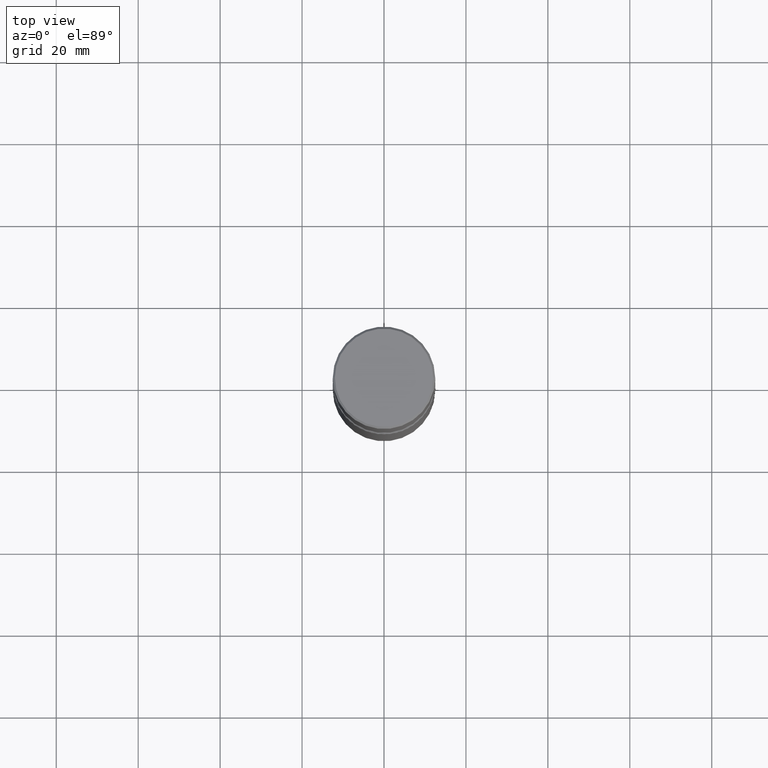
[diagram: clean part render]
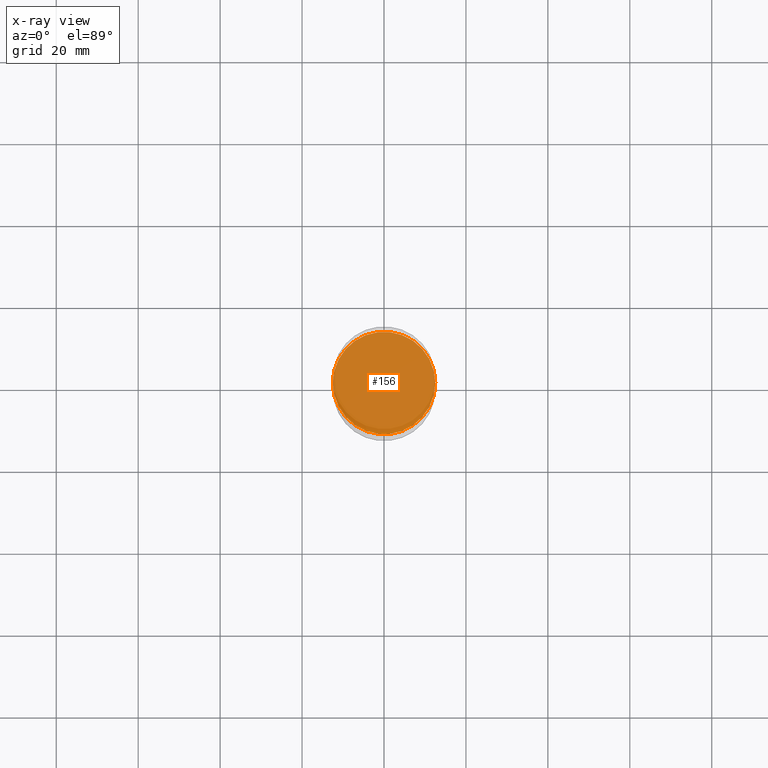
[diagram: x-ray — body ghosted, one internal face saturated and labeled with its STEP entity id]
A machine part, top view, then the same camera in x-ray: the body is ghosted and one INTERNAL B-rep face — a face not visible from any outside direction — is saturated and labeled: STEP entity #156.
In plain terms, the highlighted planar face has unit normal (0, -0, -1).
Its self-contained STEP definition (entity closure, byte-faithful):
#32 = ORIENTED_EDGE ( 'NONE', *, *, #300, .T. ) ;
#41 = VERTEX_POINT ( 'NONE', #160 ) ;
#87 = EDGE_CURVE ( 'NONE', #333, #41, #105, .T. ) ;
#105 = CIRCLE ( 'NONE', #392, 0.4921500000000003650 ) ;
#156 = ADVANCED_FACE ( 'NONE', ( #531 ), #441, .F. ) ;
#160 = CARTESIAN_POINT ( 'NONE',  ( -0.4921500000000004205, -1.347969363981368966E-14, -2.952800000000000313 ) ) ;
#196 = CARTESIAN_POINT ( 'NONE',  ( 7.220980290903472425E-29, -1.030964609733604011E-14, -2.952800000000000313 ) ) ;
#202 = AXIS2_PLACEMENT_3D ( 'NONE', #471, #557, #276 ) ;
#204 = EDGE_LOOP ( 'NONE', ( #254, #32 ) ) ;
#254 = ORIENTED_EDGE ( 'NONE', *, *, #87, .T. ) ;
#276 = DIRECTION ( 'NONE',  ( 1.000000000000000000, -6.982962677686265133E-15, 0.000000000000000000 ) ) ;
#293 = AXIS2_PLACEMENT_3D ( 'NONE', #196, #535, #410 ) ;
#300 = EDGE_CURVE ( 'NONE', #41, #333, #341, .T. ) ;
#301 = DIRECTION ( 'NONE',  ( 1.000000000000000000, -6.982962677686265133E-15, 0.000000000000000000 ) ) ;
#314 = CARTESIAN_POINT ( 'NONE',  ( 0.4921500000000003650, -1.374631117915933746E-14, -2.952800000000000313 ) ) ;
#333 = VERTEX_POINT ( 'NONE', #314 ) ;
#341 = CIRCLE ( 'NONE', #202, 0.4921500000000003650 ) ;
#392 = AXIS2_PLACEMENT_3D ( 'NONE', #491, #516, #301 ) ;
#410 = DIRECTION ( 'NONE',  ( -1.000000000000000000, 6.982962677686265922E-15, -4.876176775795935793E-29 ) ) ;
#441 = PLANE ( 'NONE',  #293 ) ;
#471 = CARTESIAN_POINT ( 'NONE',  ( 7.220980290903472425E-29, -1.030964609733604011E-14, -2.952800000000000313 ) ) ;
#491 = CARTESIAN_POINT ( 'NONE',  ( 7.220980290903472425E-29, -1.030964609733604011E-14, -2.952800000000000313 ) ) ;
#516 = DIRECTION ( 'NONE',  ( -2.445468806185136597E-29, 3.491481338843145583E-15, 1.000000000000000000 ) ) ;
#531 = FACE_OUTER_BOUND ( 'NONE', #204, .T. ) ;
#535 = DIRECTION ( 'NONE',  ( 2.438088387897960049E-29, -3.491481338843145188E-15, -1.000000000000000000 ) ) ;
#557 = DIRECTION ( 'NONE',  ( -2.445468806185136597E-29, 3.491481338843145583E-15, 1.000000000000000000 ) ) ;